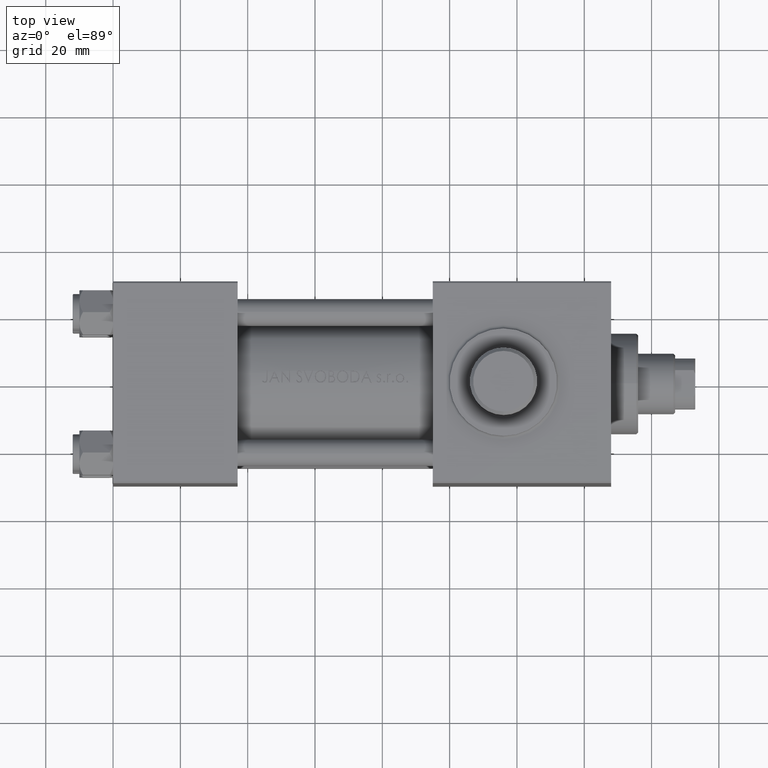
[diagram: clean part render]
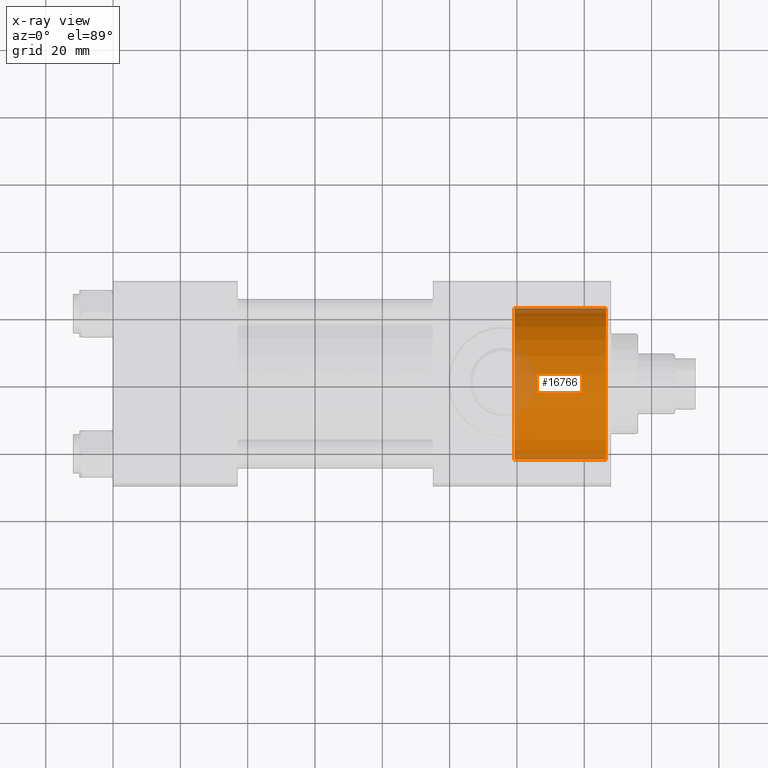
[diagram: x-ray — body ghosted, one internal face saturated and labeled with its STEP entity id]
A machine part, top view, then the same camera in x-ray: the body is ghosted and one INTERNAL B-rep face — a face not visible from any outside direction — is saturated and labeled: STEP entity #16766.
In plain terms, the highlighted cylindrical surface (partial cylindrical patch) has radius 22.5 mm, axis along (1, 0, 0).
Its self-contained STEP definition (entity closure, byte-faithful):
#515 = CIRCLE ( 'NONE', #10230, 22.50000000000000355 ) ;
#1184 = DIRECTION ( 'NONE',  ( 0.000000000000000000, 0.000000000000000000, -1.000000000000000000 ) ) ;
#1877 = CARTESIAN_POINT ( 'NONE',  ( 119.2999999999999829, 0.000000000000000000, 0.000000000000000000 ) ) ;
#2271 = CARTESIAN_POINT ( 'NONE',  ( 119.2999999999999829, 0.000000000000000000, -22.50000000000000355 ) ) ;
#6494 = DIRECTION ( 'NONE',  ( 1.000000000000000000, -0.000000000000000000, -0.000000000000000000 ) ) ;
#6680 = DIRECTION ( 'NONE',  ( 1.000000000000000000, 0.000000000000000000, 0.000000000000000000 ) ) ;
#7810 = CARTESIAN_POINT ( 'NONE',  ( 119.2999999999999829, 0.000000000000000000, 0.000000000000000000 ) ) ;
#8678 = CYLINDRICAL_SURFACE ( 'NONE', #10963, 22.50000000000000355 ) ;
#8760 = AXIS2_PLACEMENT_3D ( 'NONE', #7810, #39896, #25832 ) ;
#9962 = CARTESIAN_POINT ( 'NONE',  ( 146.5000000000000284, 0.000000000000000000, 0.000000000000000000 ) ) ;
#10230 = AXIS2_PLACEMENT_3D ( 'NONE', #9962, #6680, #20261 ) ;
#10268 = EDGE_CURVE ( 'NONE', #20990, #40347, #18991, .T. ) ;
#10963 = AXIS2_PLACEMENT_3D ( 'NONE', #1877, #12196, #1184 ) ;
#11731 = VERTEX_POINT ( 'NONE', #27204 ) ;
#12196 = DIRECTION ( 'NONE',  ( 1.000000000000000000, -0.000000000000000000, -0.000000000000000000 ) ) ;
#13001 = ORIENTED_EDGE ( 'NONE', *, *, #38246, .F. ) ;
#14572 = CARTESIAN_POINT ( 'NONE',  ( 119.2999999999999829, 2.755455298081545172E-15, 22.50000000000000355 ) ) ;
#16338 = ORIENTED_EDGE ( 'NONE', *, *, #17706, .F. ) ;
#16766 = ADVANCED_FACE ( 'NONE', ( #33044 ), #8678, .F. ) ;
#17706 = EDGE_CURVE ( 'NONE', #20990, #20549, #34934, .T. ) ;
#17976 = VECTOR ( 'NONE', #6494, 1000.000000000000000 ) ;
#18991 = LINE ( 'NONE', #14572, #34707 ) ;
#19407 = CARTESIAN_POINT ( 'NONE',  ( 119.2999999999999829, 0.000000000000000000, -22.50000000000000355 ) ) ;
#19467 = EDGE_LOOP ( 'NONE', ( #16338, #27062, #25821, #13001 ) ) ;
#20261 = DIRECTION ( 'NONE',  ( 0.000000000000000000, 0.000000000000000000, 1.000000000000000000 ) ) ;
#20549 = VERTEX_POINT ( 'NONE', #19407 ) ;
#20990 = VERTEX_POINT ( 'NONE', #30583 ) ;
#25821 = ORIENTED_EDGE ( 'NONE', *, *, #28322, .T. ) ;
#25832 = DIRECTION ( 'NONE',  ( 0.000000000000000000, 0.000000000000000000, -1.000000000000000000 ) ) ;
#27062 = ORIENTED_EDGE ( 'NONE', *, *, #10268, .T. ) ;
#27204 = CARTESIAN_POINT ( 'NONE',  ( 146.5000000000000284, 0.000000000000000000, -22.50000000000000355 ) ) ;
#28322 = EDGE_CURVE ( 'NONE', #40347, #11731, #515, .T. ) ;
#30583 = CARTESIAN_POINT ( 'NONE',  ( 119.2999999999999829, 2.755455298081545172E-15, 22.50000000000000355 ) ) ;
#31078 = LINE ( 'NONE', #2271, #17976 ) ;
#33044 = FACE_OUTER_BOUND ( 'NONE', #19467, .T. ) ;
#33047 = DIRECTION ( 'NONE',  ( 1.000000000000000000, -0.000000000000000000, -0.000000000000000000 ) ) ;
#34707 = VECTOR ( 'NONE', #33047, 1000.000000000000000 ) ;
#34934 = CIRCLE ( 'NONE', #8760, 22.50000000000000355 ) ;
#37807 = CARTESIAN_POINT ( 'NONE',  ( 146.5000000000000284, 2.755455298081545172E-15, 22.50000000000000355 ) ) ;
#38246 = EDGE_CURVE ( 'NONE', #20549, #11731, #31078, .T. ) ;
#39896 = DIRECTION ( 'NONE',  ( 1.000000000000000000, 0.000000000000000000, 0.000000000000000000 ) ) ;
#40347 = VERTEX_POINT ( 'NONE', #37807 ) ;